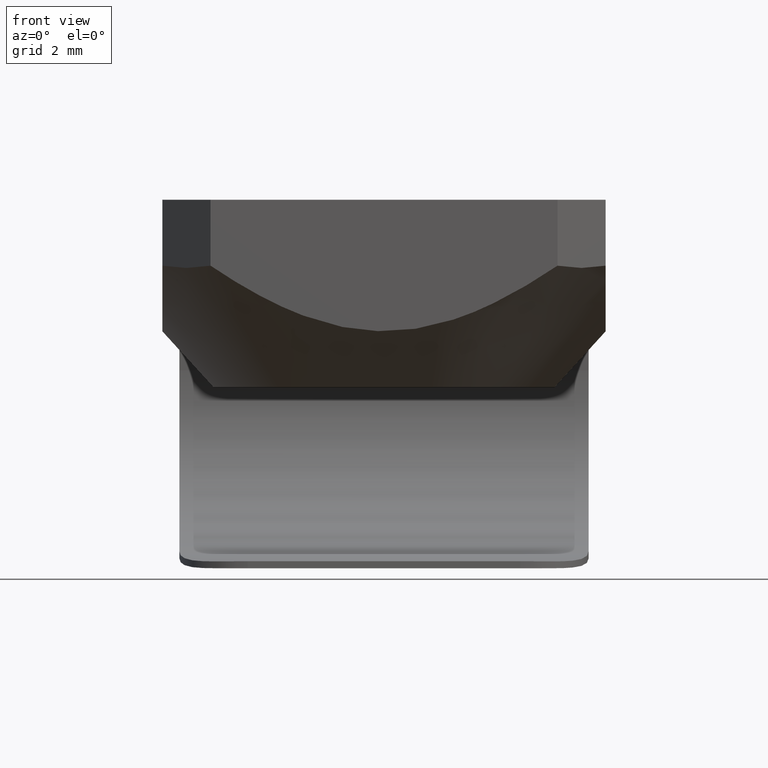
[diagram: clean part render]
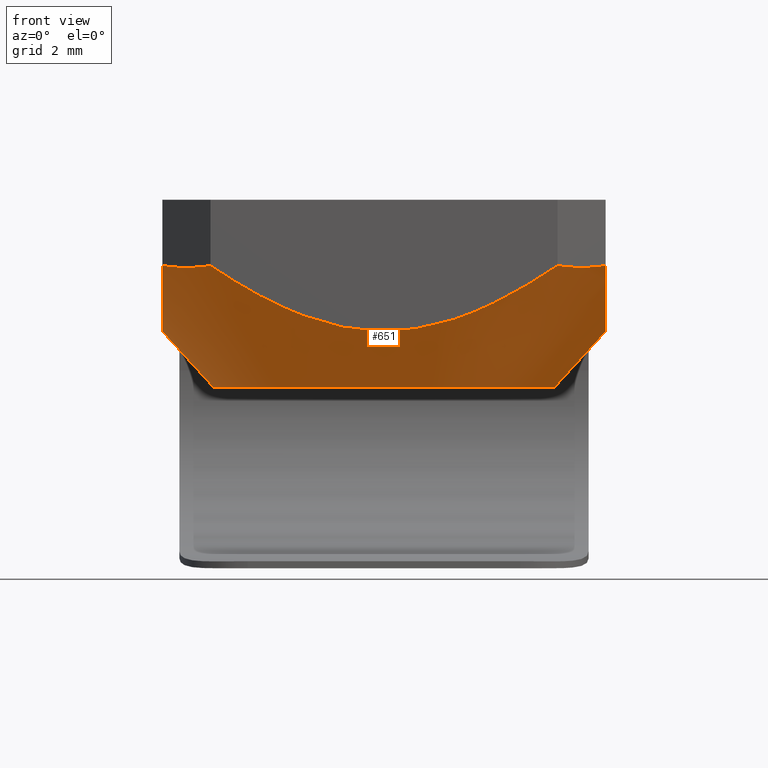
[diagram: same view with one face highlighted and labeled with its STEP entity id]
A machine part, front view. The second image highlights one B-rep face of the part: STEP entity #651.
In plain terms, the highlighted conical surface has half-angle 42.368 deg.
Its self-contained STEP definition (entity closure, byte-faithful):
#19 = VERTEX_POINT ( 'NONE', #696 ) ;
#20 = ORIENTED_EDGE ( 'NONE', *, *, #40, .F. ) ;
#28 = CARTESIAN_POINT ( 'NONE',  ( 3.107124692420668577, -6.500000000000003553, -3.094845548749633579 ) ) ;
#39 = CARTESIAN_POINT ( 'NONE',  ( 2.258238322193993675, -6.500000000000004441, -3.449905772485376332 ) ) ;
#40 = EDGE_CURVE ( 'NONE', #440, #387, #499, .T. ) ;
#42 = CARTESIAN_POINT ( 'NONE',  ( -6.499999999999996447, -1.815600839914668585, -3.598271834393967250 ) ) ;
#47 = CARTESIAN_POINT ( 'NONE',  ( -6.500000000000000000, -3.516244482561148299, -2.888242014019203996 ) ) ;
#53 = ORIENTED_EDGE ( 'NONE', *, *, #415, .T. ) ;
#61 = CARTESIAN_POINT ( 'NONE',  ( -8.272713925181710337, 2.747838738850358616E-15, -1.911934207335163727 ) ) ;
#85 = DIRECTION ( 'NONE',  ( -1.112060755793410790E-16, 1.112060755793410790E-16, 1.000000000000000000 ) ) ;
#103 = CARTESIAN_POINT ( 'NONE',  ( -5.085786437677105809, -6.500000000012473578, -1.933334202242374511 ) ) ;
#109 = EDGE_CURVE ( 'NONE', #19, #804, #298, .T. ) ;
#119 = CARTESIAN_POINT ( 'NONE',  ( 6.500000000000000888, -1.815724347486215251, -3.598234520951646864 ) ) ;
#141 = DIRECTION ( 'NONE',  ( 0.6738935147379919721, 8.216221638422233690E-17, 0.7388284853699643717 ) ) ;
#149 = VECTOR ( 'NONE', #943, 1000.000000000000114 ) ;
#154 = AXIS2_PLACEMENT_3D ( 'NONE', #392, #167, #478 ) ;
#161 = VERTEX_POINT ( 'NONE', #428 ) ;
#167 = DIRECTION ( 'NONE',  ( -1.112060755793410790E-16, 1.112060755793410790E-16, 1.000000000000000000 ) ) ;
#173 = CARTESIAN_POINT ( 'NONE',  ( -5.085786437677105809, -6.500000000012473578, -1.933334202242374511 ) ) ;
#180 = CARTESIAN_POINT ( 'NONE',  ( 0.4653350873336495885, -6.500000000000003553, -3.855445476124735649 ) ) ;
#182 = CARTESIAN_POINT ( 'NONE',  ( 6.500000000000000888, 2.268358371881253341E-15, -3.855463141347035716 ) ) ;
#184 = CARTESIAN_POINT ( 'NONE',  ( -6.499999999999999112, -0.9206392684394899550, -3.800366371403174792 ) ) ;
#185 = CIRCLE ( 'NONE', #350, 5.000000003148241667 ) ;
#186 = CARTESIAN_POINT ( 'NONE',  ( -6.028595479226078524, -5.557190958361346134, -2.021894486487704423 ) ) ;
#238 = CONICAL_SURFACE ( 'NONE', #154, 8.272713925181706784, 0.7394660560889116940 ) ;
#252 = EDGE_CURVE ( 'NONE', #676, #440, #284, .T. ) ;
#258 = CARTESIAN_POINT ( 'NONE',  ( 6.499999999966564523, -4.703623633186840181, -2.191522643361967226 ) ) ;
#265 = CARTESIAN_POINT ( 'NONE',  ( -6.500000000000000000, -4.703607954548214565, -2.191533235839579596 ) ) ;
#270 = B_SPLINE_CURVE_WITH_KNOTS ( 'NONE', 3,
 ( #309, #737, #374, #317 ),
 .UNSPECIFIED., .F., .F.,
 ( 4, 4 ),
 ( 6.051050471646755322E-14, 0.002000000000007151873 ),
 .UNSPECIFIED. ) ;
#278 = B_SPLINE_CURVE_WITH_KNOTS ( 'NONE', 3,
 ( #843, #258, #760, #907, #338, #558, #119, #628, #830, #182 ),
 .UNSPECIFIED., .F., .F.,
 ( 4, 2, 2, 2, 4 ),
 ( 8.321661056377371081E-14, 0.001375070618102954174, 0.002750141236122692796, 0.004125211854142431418, 0.005500282472162170040 ),
 .UNSPECIFIED. ) ;
#284 = LINE ( 'NONE', #61, #149 ) ;
#289 = EDGE_LOOP ( 'NONE', ( #358, #53, #617, #718, #474, #521, #819, #20 ) ) ;
#298 = LINE ( 'NONE', #906, #560 ) ;
#308 = DIRECTION ( 'NONE',  ( 1.000000000000000000, 0.0000000000000000000, 1.734723474884541410E-16 ) ) ;
#309 = CARTESIAN_POINT ( 'NONE',  ( 5.085786437677106697, -6.500000000012474466, -1.933334202242371402 ) ) ;
#317 = CARTESIAN_POINT ( 'NONE',  ( 6.500000000012471801, -5.085786437677110250, -1.933334202242371402 ) ) ;
#330 = CARTESIAN_POINT ( 'NONE',  ( -6.500000000012470913, -5.085786437677108474, -1.933334202242376954 ) ) ;
#338 = CARTESIAN_POINT ( 'NONE',  ( 6.499999999999999112, -3.107104337365194535, -3.094856044108537763 ) ) ;
#350 = AXIS2_PLACEMENT_3D ( 'NONE', #667, #85, #308 ) ;
#358 = ORIENTED_EDGE ( 'NONE', *, *, #252, .F. ) ;
#374 = CARTESIAN_POINT ( 'NONE',  ( 6.028595479244057032, -5.557190958382852486, -2.021894486498649446 ) ) ;
#383 = CARTESIAN_POINT ( 'NONE',  ( -1.815581894366166571, -6.500000000000001776, -3.598278178908113745 ) ) ;
#387 = VERTEX_POINT ( 'NONE', #663 ) ;
#390 = CARTESIAN_POINT ( 'NONE',  ( -5.000000003148242556, 2.347935450215647433E-15, -5.500000002871544780 ) ) ;
#391 = CARTESIAN_POINT ( 'NONE',  ( -4.314559355035862076, -6.500000000000002665, -2.436630007698925571 ) ) ;
#392 = CARTESIAN_POINT ( 'NONE',  ( -8.673617379884035472E-16, 1.734723475976807094E-15, -1.911934207335162839 ) ) ;
#415 = EDGE_CURVE ( 'NONE', #676, #19, #185, .T. ) ;
#428 = CARTESIAN_POINT ( 'NONE',  ( 5.085786437677106697, -6.500000000012474466, -1.933334202242371402 ) ) ;
#440 = VERTEX_POINT ( 'NONE', #461 ) ;
#461 = CARTESIAN_POINT ( 'NONE',  ( -6.499999999999999112, 1.564844549028617558E-15, -3.855463141347041045 ) ) ;
#474 = ORIENTED_EDGE ( 'NONE', *, *, #556, .F. ) ;
#478 = DIRECTION ( 'NONE',  ( 1.000000000000000000, 0.0000000000000000000, 1.048460935350610842E-16 ) ) ;
#482 = CARTESIAN_POINT ( 'NONE',  ( -0.9205997802961275456, -6.500000000000003553, -3.800373221879205232 ) ) ;
#499 = B_SPLINE_CURVE_WITH_KNOTS ( 'NONE', 3,
 ( #909, #631, #184, #42, #762, #621, #47, #838, #265, #699 ),
 .UNSPECIFIED., .F., .F.,
 ( 4, 2, 2, 2, 4 ),
 ( 0.005500282472162164836, 0.006875464021343275639, 0.008250645570524385575, 0.009625827119705495510, 0.01100100866888660718 ),
 .UNSPECIFIED. ) ;
#521 = ORIENTED_EDGE ( 'NONE', *, *, #680, .F. ) ;
#546 = CARTESIAN_POINT ( 'NONE',  ( 1.815743295979880711, -6.500000000000003553, -3.598228176136369694 ) ) ;
#552 = CARTESIAN_POINT ( 'NONE',  ( 0.9208216822838624083, -6.500000000000002665, -3.800336665431245819 ) ) ;
#556 = EDGE_CURVE ( 'NONE', #161, #765, #270, .T. ) ;
#558 = CARTESIAN_POINT ( 'NONE',  ( 6.500000000000000000, -2.258188589613314257, -3.449924592231258913 ) ) ;
#560 = VECTOR ( 'NONE', #141, 1000.000000000000114 ) ;
#614 = CARTESIAN_POINT ( 'NONE',  ( 4.703623369059488191, -6.500000000000002665, -2.191522821825990341 ) ) ;
#617 = ORIENTED_EDGE ( 'NONE', *, *, #109, .T. ) ;
#618 = CARTESIAN_POINT ( 'NONE',  ( -5.085786437677105809, -6.500000000012473578, -1.933334202242374511 ) ) ;
#621 = CARTESIAN_POINT ( 'NONE',  ( -6.499999999999999112, -3.107041589988807306, -3.094886115520043113 ) ) ;
#628 = CARTESIAN_POINT ( 'NONE',  ( 6.500000000000000888, -0.9207822176421274207, -3.800343512463968842 ) ) ;
#631 = CARTESIAN_POINT ( 'NONE',  ( -6.500000000000000000, -0.4651318099098080694, -3.855463141347041045 ) ) ;
#636 = FACE_OUTER_BOUND ( 'NONE', #289, .T. ) ;
#640 = B_SPLINE_CURVE_WITH_KNOTS ( 'NONE', 3,
 ( #103, #892, #391, #684, #757, #669, #383, #482, #897, #180, #552, #546, #39, #28, #749, #758, #614, #753 ),
 .UNSPECIFIED., .F., .F.,
 ( 4, 2, 2, 2, 2, 2, 2, 2, 4 ),
 ( 8.321574170978936394E-14, 0.001375126083683639398, 0.002750252167284061508, 0.004125378250884484052, 0.005500504334484906596, 0.006875630418085329140, 0.008250756501685751684, 0.009625882585286174228, 0.01100100866888659851 ),
 .UNSPECIFIED. ) ;
#651 = ADVANCED_FACE ( 'NONE', ( #636 ), #238, .T. ) ;
#663 = CARTESIAN_POINT ( 'NONE',  ( -6.500000000012470913, -5.085786437677108474, -1.933334202242376954 ) ) ;
#667 = CARTESIAN_POINT ( 'NONE',  ( -4.683470219463361509E-16, 1.335708759934739698E-15, -5.500000002871543892 ) ) ;
#669 = CARTESIAN_POINT ( 'NONE',  ( -2.258066242822474035, -6.500000000000002665, -3.449969955218917583 ) ) ;
#676 = VERTEX_POINT ( 'NONE', #390 ) ;
#680 = EDGE_CURVE ( 'NONE', #742, #161, #640, .T. ) ;
#684 = CARTESIAN_POINT ( 'NONE',  ( -3.516232638360159868, -6.500000000000004441, -2.888248432145468669 ) ) ;
#692 = CARTESIAN_POINT ( 'NONE',  ( -5.557190958382846269, -6.028595479244061472, -2.021894486498652999 ) ) ;
#693 = EDGE_CURVE ( 'NONE', #387, #742, #707, .T. ) ;
#696 = CARTESIAN_POINT ( 'NONE',  ( 5.000000003148240779, 1.335708759934739698E-15, -5.500000002871543003 ) ) ;
#697 = CARTESIAN_POINT ( 'NONE',  ( 6.500000000012471801, -5.085786437677110250, -1.933334202242371402 ) ) ;
#699 = CARTESIAN_POINT ( 'NONE',  ( -6.500000000012470913, -5.085786437677108474, -1.933334202242376954 ) ) ;
#707 = B_SPLINE_CURVE_WITH_KNOTS ( 'NONE', 3,
 ( #330, #186, #692, #173 ),
 .UNSPECIFIED., .F., .F.,
 ( 4, 4 ),
 ( 6.051111803072601847E-14, 0.002000000000007151873 ),
 .UNSPECIFIED. ) ;
#718 = ORIENTED_EDGE ( 'NONE', *, *, #759, .F. ) ;
#737 = CARTESIAN_POINT ( 'NONE',  ( 5.557190958361344357, -6.028595479226081189, -2.021894486487701315 ) ) ;
#742 = VERTEX_POINT ( 'NONE', #618 ) ;
#749 = CARTESIAN_POINT ( 'NONE',  ( 3.516309706215214437, -6.500000000000002665, -2.888207160138610785 ) ) ;
#753 = CARTESIAN_POINT ( 'NONE',  ( 5.085786437677106697, -6.500000000012474466, -1.933334202242371402 ) ) ;
#757 = CARTESIAN_POINT ( 'NONE',  ( -3.107021229645464011, -6.500000000000003553, -3.094896613372096539 ) ) ;
#758 = CARTESIAN_POINT ( 'NONE',  ( 4.314592221427061780, -6.500000000000002665, -2.436609088893720632 ) ) ;
#759 = EDGE_CURVE ( 'NONE', #765, #804, #278, .T. ) ;
#760 = CARTESIAN_POINT ( 'NONE',  ( 6.500000000000000888, -4.314590728831698918, -2.436610215365368148 ) ) ;
#762 = CARTESIAN_POINT ( 'NONE',  ( -6.500000000000000000, -2.258115985512184398, -3.449951132485600258 ) ) ;
#765 = VERTEX_POINT ( 'NONE', #697 ) ;
#804 = VERTEX_POINT ( 'NONE', #848 ) ;
#819 = ORIENTED_EDGE ( 'NONE', *, *, #693, .F. ) ;
#830 = CARTESIAN_POINT ( 'NONE',  ( 6.500000000000002665, -0.4650942893279644830, -3.855463141347037048 ) ) ;
#838 = CARTESIAN_POINT ( 'NONE',  ( -6.499999999999999112, -4.314560849031610523, -2.436628880319039236 ) ) ;
#843 = CARTESIAN_POINT ( 'NONE',  ( 6.500000000012471801, -5.085786437677110250, -1.933334202242371402 ) ) ;
#848 = CARTESIAN_POINT ( 'NONE',  ( 6.500000000000000888, 2.268358371881253341E-15, -3.855463141347035716 ) ) ;
#892 = CARTESIAN_POINT ( 'NONE',  ( -4.703608218064449176, -6.499999999966565412, -2.191533057788421779 ) ) ;
#897 = CARTESIAN_POINT ( 'NONE',  ( -0.4648848418447529274, -6.500000000000003553, -3.855480798021071465 ) ) ;
#906 = CARTESIAN_POINT ( 'NONE',  ( 8.272713925181706784, 1.734723475976807094E-15, -1.911934207335161950 ) ) ;
#907 = CARTESIAN_POINT ( 'NONE',  ( 6.499999999999999112, -3.516297865762419761, -2.888213576328807708 ) ) ;
#909 = CARTESIAN_POINT ( 'NONE',  ( -6.499999999999999112, 1.564844549028617558E-15, -3.855463141347041045 ) ) ;
#943 = DIRECTION ( 'NONE',  ( -0.6738935147379921942, 1.646903699632265117E-16, 0.7388284853699641497 ) ) ;